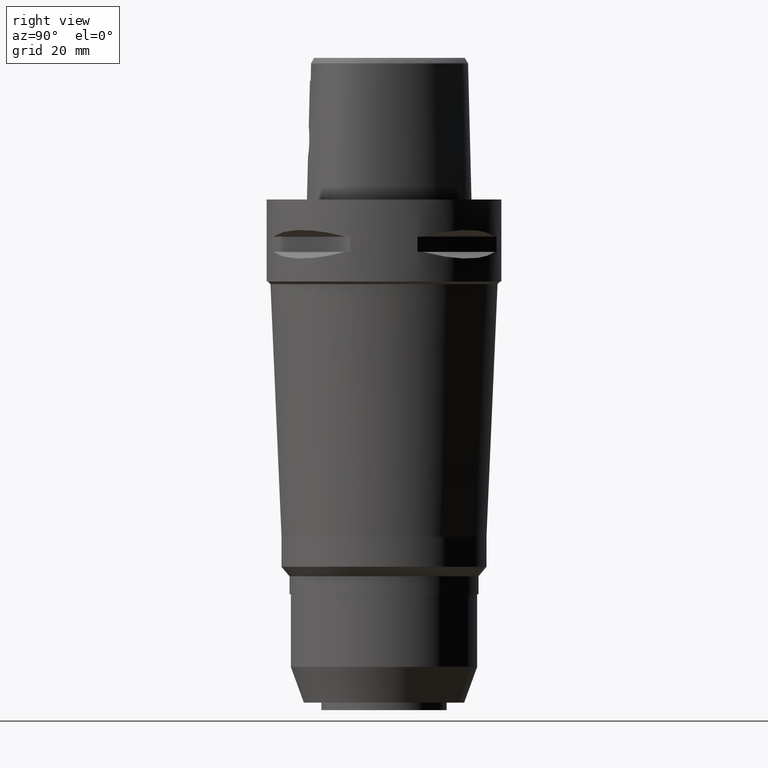
[diagram: clean part render]
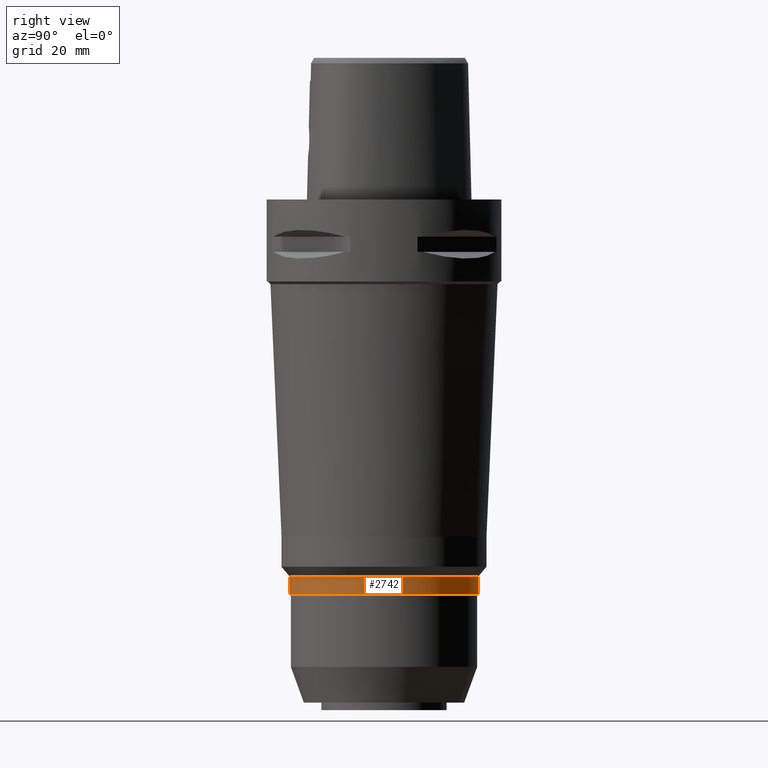
[diagram: same view with one face highlighted and labeled with its STEP entity id]
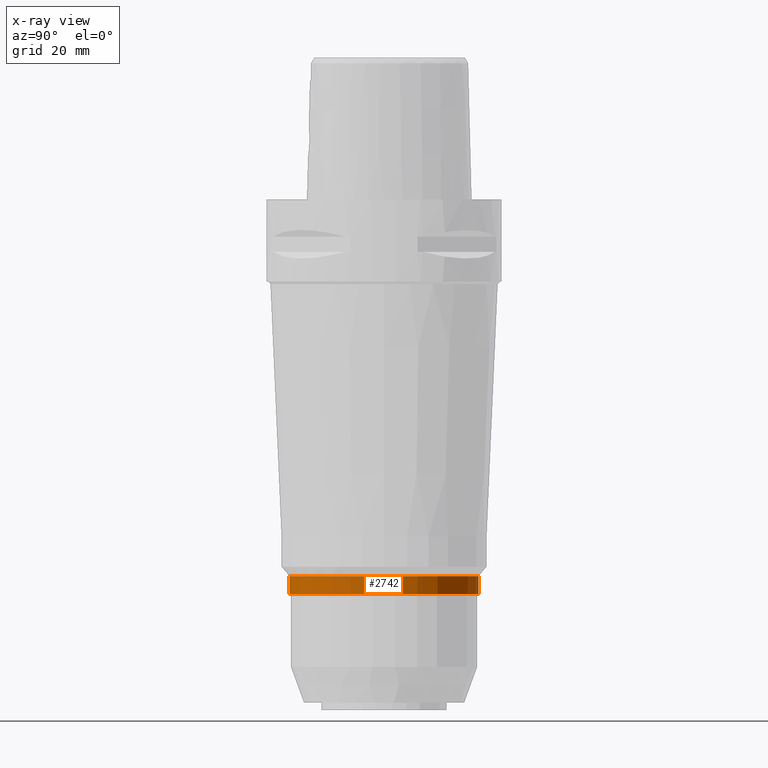
[diagram: x-ray of the same camera — body ghosted, the highlighted face saturated]
A machine part, right view. The second image highlights one B-rep face of the part: STEP entity #2742.
The next image is the same camera in x-ray: the body ghosted, the highlighted face saturated — about 0% of this face is hidden behind the body in this view.
In plain terms, the highlighted cylindrical surface (partial cylindrical patch) has radius 25.35 mm, axis along (0, 0, -1).
Its self-contained STEP definition (entity closure, byte-faithful):
#605=CARTESIAN_POINT('',(0.E0,0.E0,-1.011E2));
#606=DIRECTION('',(0.E0,0.E0,-1.E0));
#607=DIRECTION('',(0.E0,1.E0,0.E0));
#608=AXIS2_PLACEMENT_3D('',#605,#606,#607);
#644=DIRECTION('',(0.E0,-6.291263806209E-14,-1.E0));
#645=VECTOR('',#644,4.8E0);
#646=CARTESIAN_POINT('',(0.E0,-2.535E1,-1.011E2));
#647=LINE('',#646,#645);
#651=DIRECTION('',(0.E0,6.365278674517E-14,-1.E0));
#652=VECTOR('',#651,4.8E0);
#653=CARTESIAN_POINT('',(0.E0,2.535E1,-1.011E2));
#654=LINE('',#653,#652);
#658=CARTESIAN_POINT('',(0.E0,1.308535104889E-14,-1.059E2));
#659=DIRECTION('',(0.E0,0.E0,1.E0));
#660=DIRECTION('',(0.E0,-1.E0,0.E0));
#661=AXIS2_PLACEMENT_3D('',#658,#659,#660);
#1708=CARTESIAN_POINT('',(0.E0,2.535E1,-1.011E2));
#1709=VERTEX_POINT('',#1708);
#1710=CARTESIAN_POINT('',(0.E0,-2.535E1,-1.011E2));
#1711=VERTEX_POINT('',#1710);
#1712=CARTESIAN_POINT('',(0.E0,2.535E1,-1.059E2));
#1713=VERTEX_POINT('',#1712);
#1714=CARTESIAN_POINT('',(0.E0,-2.535E1,-1.059E2));
#1715=VERTEX_POINT('',#1714);
#2730=CARTESIAN_POINT('',(0.E0,1.308535104889E-14,6.85E0));
#2731=DIRECTION('',(0.E0,0.E0,-1.E0));
#2732=DIRECTION('',(0.E0,-1.E0,0.E0));
#2733=AXIS2_PLACEMENT_3D('',#2730,#2731,#2732);
#2734=CYLINDRICAL_SURFACE('',#2733,2.535E1);
#2735=ORIENTED_EDGE('',*,*,#2720,.T.);
#2737=ORIENTED_EDGE('',*,*,#2736,.F.);
#2738=ORIENTED_EDGE('',*,*,#2723,.F.);
#2739=ORIENTED_EDGE('',*,*,#2694,.F.);
#2740=EDGE_LOOP('',(#2735,#2737,#2738,#2739));
#2741=FACE_OUTER_BOUND('',#2740,.F.);
#609=CIRCLE('',#608,2.535E1);
#662=CIRCLE('',#661,2.535E1);
#2694=EDGE_CURVE('',#1709,#1711,#609,.T.);
#2720=EDGE_CURVE('',#1709,#1713,#654,.T.);
#2723=EDGE_CURVE('',#1711,#1715,#647,.T.);
#2736=EDGE_CURVE('',#1715,#1713,#662,.T.);
#2742=ADVANCED_FACE('',(#2741),#2734,.T.);